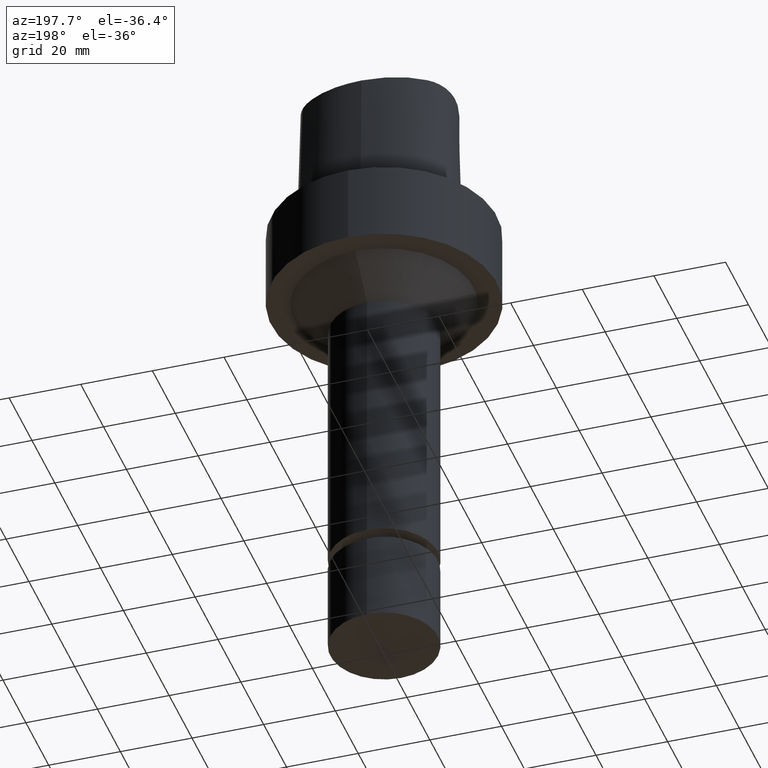
[diagram: clean part render]
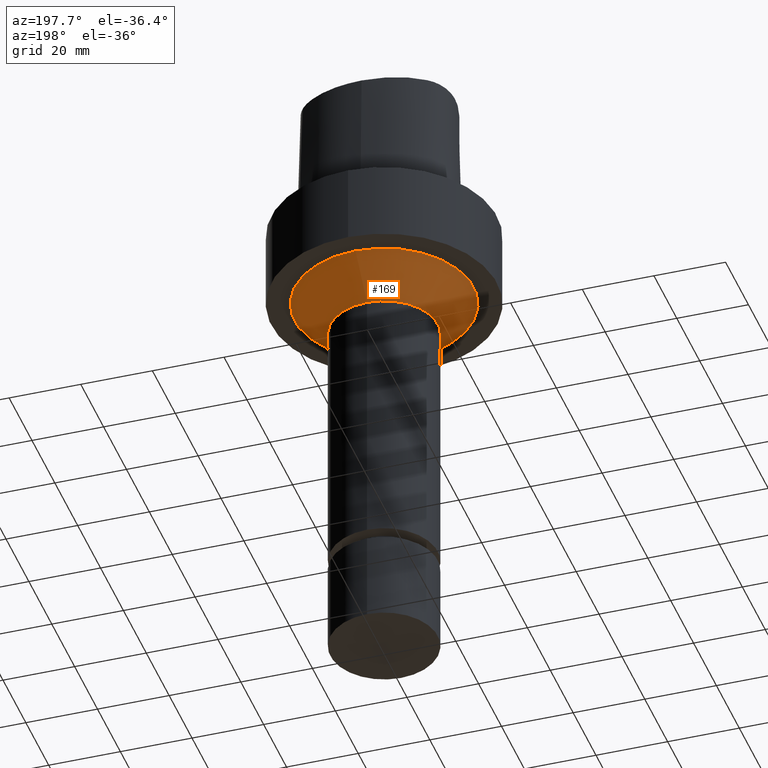
[diagram: same view with one face highlighted and labeled with its STEP entity id]
A machine part, auxiliary view. The second image highlights one B-rep face of the part: STEP entity #169.
In plain terms, the highlighted conical surface has half-angle 45 deg.
Its self-contained STEP definition (entity closure, byte-faithful):
#107=EDGE_CURVE('Unnamed[1]',#245,#245,#246,.T.);
#122=EDGE_CURVE('Unnamed[1]',#266,#266,#267,.T.);
#169=ADVANCED_FACE('Unnamed[1]',(#332,#333),#334,.T.);
#245=VERTEX_POINT('',#499);
#246=CIRCLE('',#500,24.9999999999991);
#266=VERTEX_POINT('',#541);
#267=CIRCLE('',#542,14.9999999999997);
#332=FACE_BOUND('',#729,.T.);
#333=FACE_BOUND('',#730,.T.);
#334=CONICAL_SURFACE('',#731,19.9999999999994,0.785398163397415);
#499=CARTESIAN_POINT('',(1.34711147906212E-015,24.9999999999991,-22.0000000000005));
#500=AXIS2_PLACEMENT_3D('',#797,#798,#799);
#541=CARTESIAN_POINT('',(1.9594348786358E-015,14.9999999999997,-32.0000000000006));
#542=AXIS2_PLACEMENT_3D('',#819,#820,#821);
#729=EDGE_LOOP('',(#881));
#730=EDGE_LOOP('',(#882));
#731=AXIS2_PLACEMENT_3D('',#883,#884,#885);
#797=CARTESIAN_POINT('',(1.34711147906212E-015,2.69422295812424E-015,-22.0000000000005));
#798=DIRECTION('',(6.12323399573677E-017,1.22464679914735E-016,-1.0));
#799=DIRECTION('',(-1.23259516440783E-032,1.0,1.22464679914735E-016));
#819=CARTESIAN_POINT('',(1.9594348786358E-015,3.9188697572716E-015,-32.0000000000006));
#820=DIRECTION('',(6.12323399573677E-017,1.22464679914735E-016,-1.0));
#821=DIRECTION('',(-1.23259516440783E-032,1.0,1.22464679914735E-016));
#881=ORIENTED_EDGE('',*,*,#122,.F.);
#882=ORIENTED_EDGE('',*,*,#107,.T.);
#883=CARTESIAN_POINT('',(1.65327317884896E-015,3.30654635769792E-015,-27.0000000000006));
#884=DIRECTION('',(-6.12323399573677E-017,-1.22464679914735E-016,1.0));
#885=DIRECTION('',(-1.23259516440783E-032,1.0,1.22464679914735E-016));